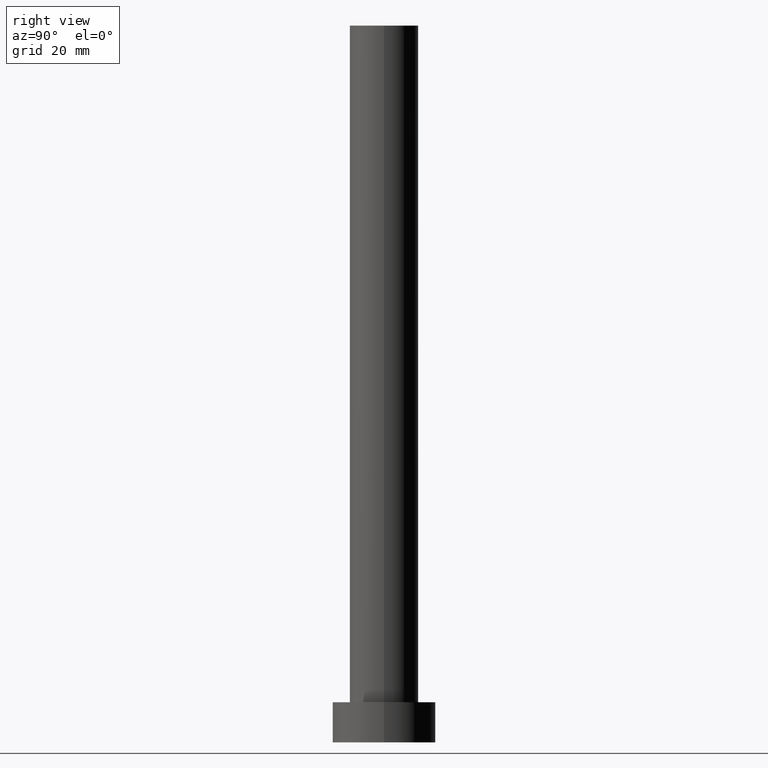
[diagram: clean part render]
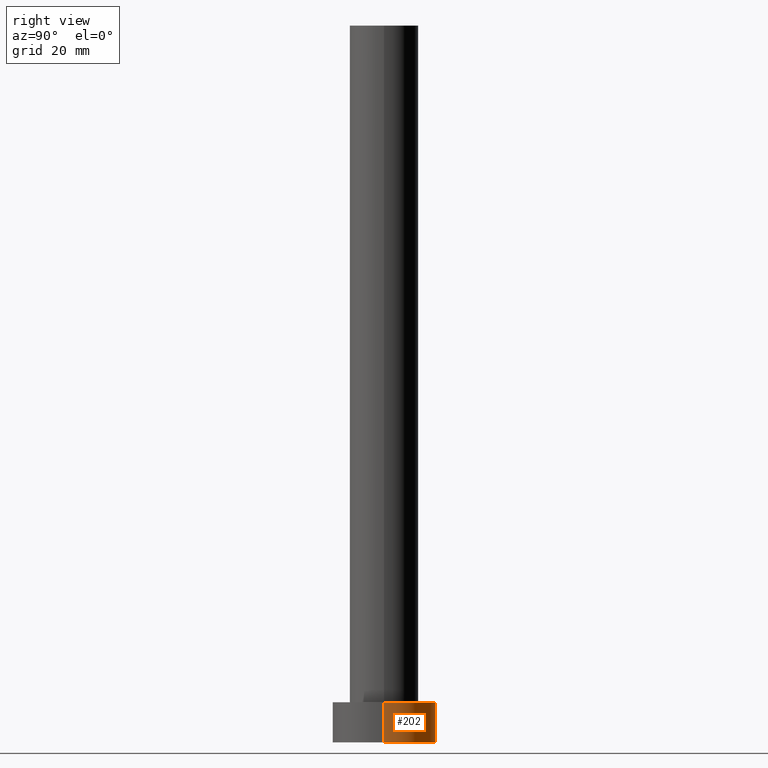
[diagram: same view with one face highlighted and labeled with its STEP entity id]
A machine part, right view. The second image highlights one B-rep face of the part: STEP entity #202.
In plain terms, the highlighted cylindrical surface (partial cylindrical patch) has radius 9 mm, axis along (-0, -0, -1).
Its self-contained STEP definition (entity closure, byte-faithful):
#1 = CARTESIAN_POINT ( 'NONE',  ( 9.000000000000000000, 1.102182119232617714E-15, 7.000000000000000000 ) ) ;
#10 = CARTESIAN_POINT ( 'NONE',  ( 0.000000000000000000, 0.000000000000000000, 7.000000000000000000 ) ) ;
#20 = CARTESIAN_POINT ( 'NONE',  ( -9.000000000000000000, 0.000000000000000000, 7.000000000000000000 ) ) ;
#21 = DIRECTION ( 'NONE',  ( 1.000000000000000000, 0.000000000000000000, 0.000000000000000000 ) ) ;
#28 = DIRECTION ( 'NONE',  ( 1.000000000000000000, 0.000000000000000000, 0.000000000000000000 ) ) ;
#40 = DIRECTION ( 'NONE',  ( -0.000000000000000000, -0.000000000000000000, -1.000000000000000000 ) ) ;
#42 = DIRECTION ( 'NONE',  ( -0.000000000000000000, -0.000000000000000000, -1.000000000000000000 ) ) ;
#57 = CIRCLE ( 'NONE', #246, 9.000000000000000000 ) ;
#60 = ORIENTED_EDGE ( 'NONE', *, *, #135, .T. ) ;
#62 = LINE ( 'NONE', #143, #156 ) ;
#70 = DIRECTION ( 'NONE',  ( -0.000000000000000000, -0.000000000000000000, -1.000000000000000000 ) ) ;
#92 = EDGE_CURVE ( 'NONE', #153, #95, #57, .T. ) ;
#94 = VERTEX_POINT ( 'NONE', #20 ) ;
#95 = VERTEX_POINT ( 'NONE', #122 ) ;
#96 = VECTOR ( 'NONE', #42, 1000.000000000000000 ) ;
#98 = EDGE_LOOP ( 'NONE', ( #207, #60, #116, #251 ) ) ;
#105 = CARTESIAN_POINT ( 'NONE',  ( 9.000000000000000000, 1.102182119232617714E-15, 7.000000000000000000 ) ) ;
#116 = ORIENTED_EDGE ( 'NONE', *, *, #92, .T. ) ;
#121 = EDGE_CURVE ( 'NONE', #94, #95, #62, .T. ) ;
#122 = CARTESIAN_POINT ( 'NONE',  ( -9.000000000000000000, 0.000000000000000000, 0.000000000000000000 ) ) ;
#135 = EDGE_CURVE ( 'NONE', #227, #153, #213, .T. ) ;
#138 = AXIS2_PLACEMENT_3D ( 'NONE', #245, #182, #28 ) ;
#143 = CARTESIAN_POINT ( 'NONE',  ( -9.000000000000000000, 0.000000000000000000, 7.000000000000000000 ) ) ;
#149 = DIRECTION ( 'NONE',  ( -1.000000000000000000, 0.000000000000000000, 0.000000000000000000 ) ) ;
#153 = VERTEX_POINT ( 'NONE', #158 ) ;
#156 = VECTOR ( 'NONE', #40, 1000.000000000000000 ) ;
#158 = CARTESIAN_POINT ( 'NONE',  ( 9.000000000000000000, 1.102182119232617714E-15, 0.000000000000000000 ) ) ;
#161 = CARTESIAN_POINT ( 'NONE',  ( 0.000000000000000000, 0.000000000000000000, 0.000000000000000000 ) ) ;
#168 = CIRCLE ( 'NONE', #138, 9.000000000000000000 ) ;
#171 = EDGE_CURVE ( 'NONE', #227, #94, #168, .T. ) ;
#182 = DIRECTION ( 'NONE',  ( 0.000000000000000000, 0.000000000000000000, 1.000000000000000000 ) ) ;
#202 = ADVANCED_FACE ( 'NONE', ( #247 ), #243, .T. ) ;
#207 = ORIENTED_EDGE ( 'NONE', *, *, #171, .F. ) ;
#213 = LINE ( 'NONE', #1, #96 ) ;
#216 = AXIS2_PLACEMENT_3D ( 'NONE', #10, #70, #149 ) ;
#227 = VERTEX_POINT ( 'NONE', #105 ) ;
#241 = DIRECTION ( 'NONE',  ( 0.000000000000000000, 0.000000000000000000, 1.000000000000000000 ) ) ;
#243 = CYLINDRICAL_SURFACE ( 'NONE', #216, 9.000000000000000000 ) ;
#245 = CARTESIAN_POINT ( 'NONE',  ( 0.000000000000000000, 0.000000000000000000, 7.000000000000000000 ) ) ;
#246 = AXIS2_PLACEMENT_3D ( 'NONE', #161, #241, #21 ) ;
#247 = FACE_OUTER_BOUND ( 'NONE', #98, .T. ) ;
#251 = ORIENTED_EDGE ( 'NONE', *, *, #121, .F. ) ;